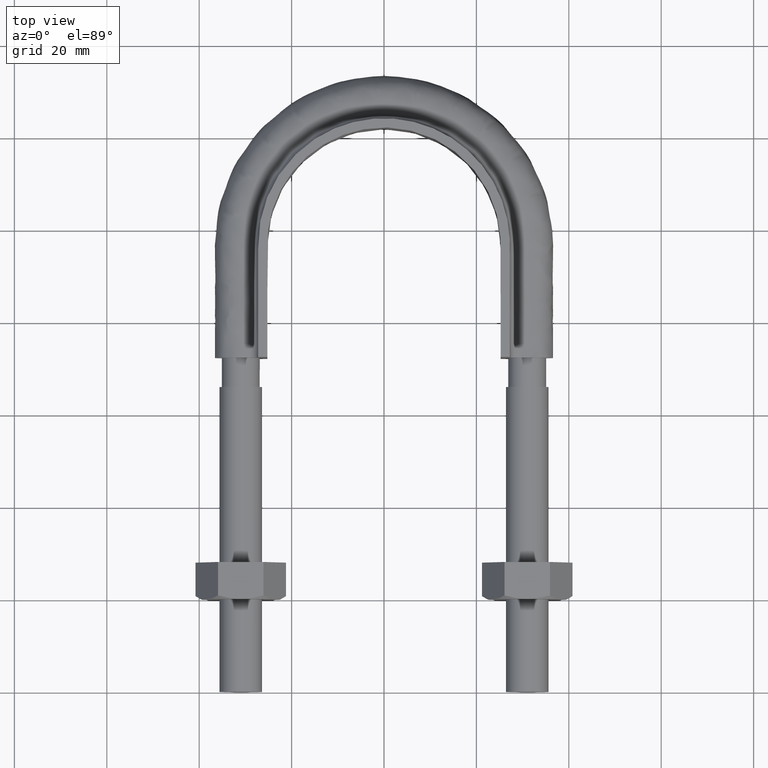
[diagram: clean part render]
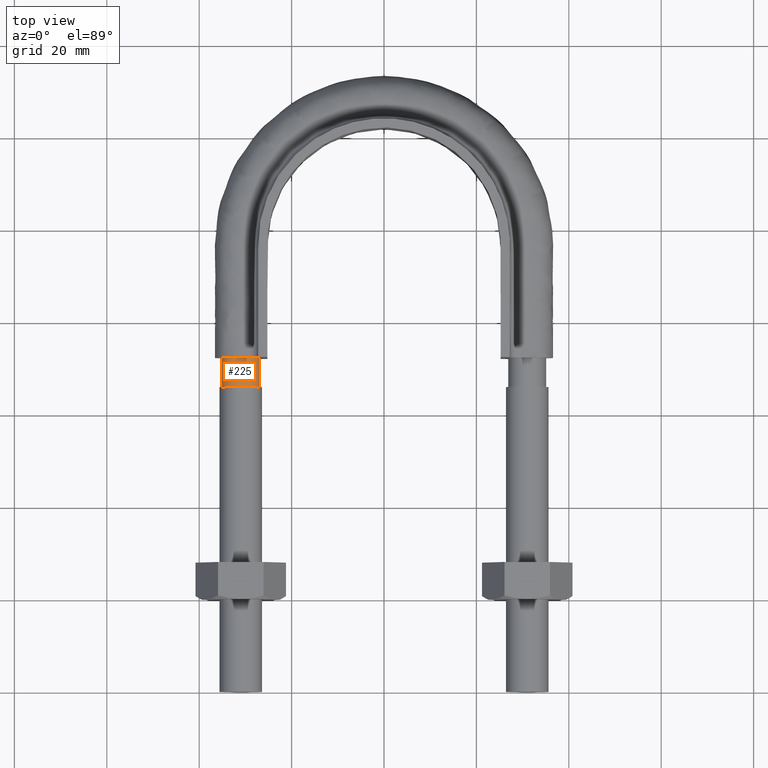
[diagram: same view with one face highlighted and labeled with its STEP entity id]
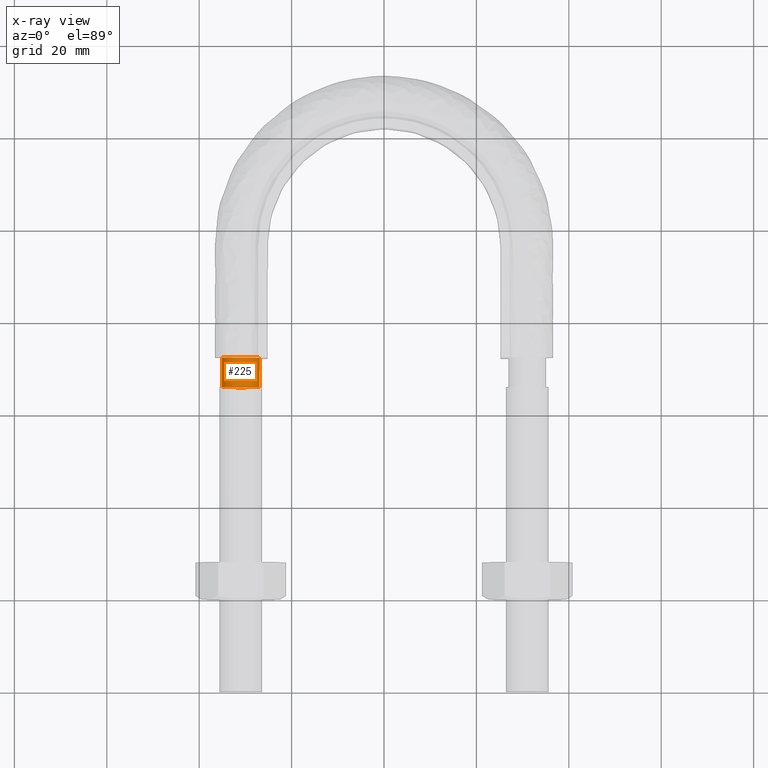
[diagram: x-ray of the same camera — body ghosted, the highlighted face saturated]
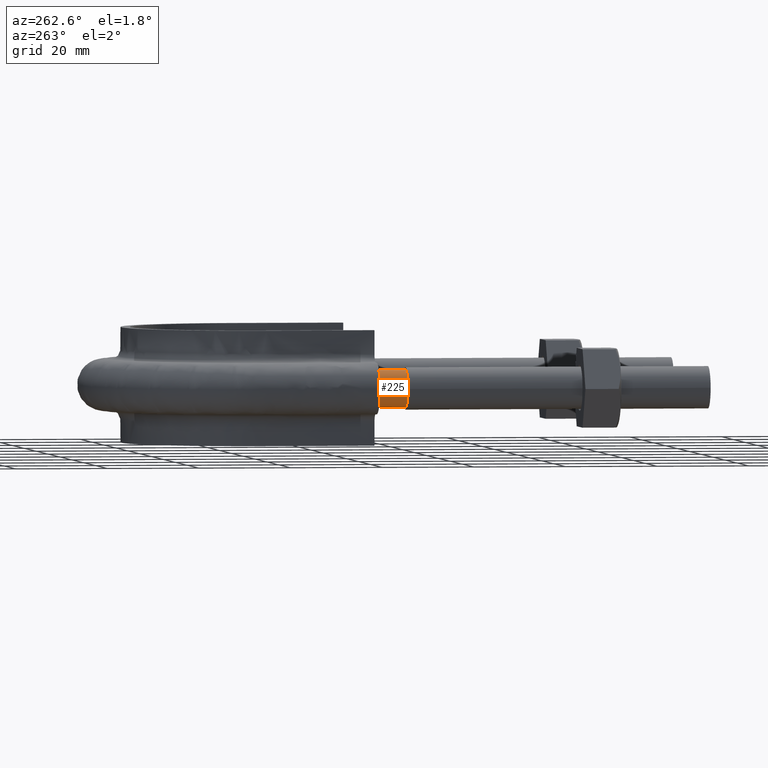
[diagram: same view with one face highlighted and labeled with its STEP entity id]
A machine part, top view. The second image highlights one B-rep face of the part: STEP entity #225.
The next image is the same camera in x-ray: the body ghosted, the highlighted face saturated — about 0% of this face is hidden behind the body in this view.
A second angle (auxiliary view) of the same face is appended — the face is thin or edge-on in the first view.
In plain terms, the highlighted cylindrical surface (bore or boss wall) has radius 4.1 mm, axis along (0, 1, 0).
Its self-contained STEP definition (entity closure, byte-faithful):
#225 = ADVANCED_FACE( '', ( #307, #308 ), #309, .T. );
#307 = FACE_OUTER_BOUND( '', #1001, .T. );
#308 = FACE_OUTER_BOUND( '', #1002, .T. );
#309 = CYLINDRICAL_SURFACE( '', #1003, 4.10000000000000 );
#1001 = EDGE_LOOP( '', ( #1359, #1360, #1361, #1362, #1363, #1364, #1365 ) );
#1002 = EDGE_LOOP( '', ( #1366 ) );
#1003 = AXIS2_PLACEMENT_3D( '', #1367, #1368, #1369 );
#1359 = ORIENTED_EDGE( '', *, *, #1851, .T. );
#1360 = ORIENTED_EDGE( '', *, *, #1852, .T. );
#1361 = ORIENTED_EDGE( '', *, *, #1853, .T. );
#1362 = ORIENTED_EDGE( '', *, *, #1854, .T. );
#1363 = ORIENTED_EDGE( '', *, *, #1855, .T. );
#1364 = ORIENTED_EDGE( '', *, *, #1856, .T. );
#1365 = ORIENTED_EDGE( '', *, *, #1857, .T. );
#1366 = ORIENTED_EDGE( '', *, *, #1858, .T. );
#1367 = CARTESIAN_POINT( '', ( -31.0000000000000, 72.3000000000000, 5.74952683119606E-015 ) );
#1368 = DIRECTION( '', ( 1.22460635382238E-016, 1.00000000000000, 1.83690953073357E-016 ) );
#1369 = DIRECTION( '', ( -1.00000000000000, 1.22460635382238E-016, 0.000000000000000 ) );
#1851 = EDGE_CURVE( '', #2009, #2010, #2011, .T. );
#1852 = EDGE_CURVE( '', #2010, #2012, #2013, .T. );
#1853 = EDGE_CURVE( '', #2012, #2014, #2015, .T. );
#1854 = EDGE_CURVE( '', #2014, #2016, #2017, .T. );
#1855 = EDGE_CURVE( '', #2016, #2018, #2019, .T. );
#1856 = EDGE_CURVE( '', #2018, #2020, #2021, .T. );
#1857 = EDGE_CURVE( '', #2020, #2009, #2022, .T. );
#1858 = EDGE_CURVE( '', #2023, #2023, #2024, .F. );
#2009 = VERTEX_POINT( '', #2438 );
#2010 = VERTEX_POINT( '', #2439 );
#2011 = CIRCLE( '', #2440, 4.10000000000000 );
#2012 = VERTEX_POINT( '', #2441 );
#2013 = CIRCLE( '', #2442, 4.10000000000000 );
#2014 = VERTEX_POINT( '', #2443 );
#2015 = CIRCLE( '', #2444, 4.10000000000000 );
#2016 = VERTEX_POINT( '', #2445 );
#2017 = CIRCLE( '', #2446, 4.10000000000000 );
#2018 = VERTEX_POINT( '', #2447 );
#2019 = CIRCLE( '', #2448, 4.10000000000000 );
#2020 = VERTEX_POINT( '', #2449 );
#2021 = CIRCLE( '', #2450, 4.10000000000000 );
#2022 = CIRCLE( '', #2451, 4.10000000000000 );
#2023 = VERTEX_POINT( '', #2452 );
#2024 = CIRCLE( '', #2453, 4.10000000000000 );
#2438 = CARTESIAN_POINT( '', ( -34.6939723583998, 72.3000000000000, -1.77892333038219 ) );
#2439 = CARTESIAN_POINT( '', ( -31.9123358292210, 72.3000000000000, -3.99720443994545 ) );
#2440 = AXIS2_PLACEMENT_3D( '', #2884, #2885, #2886 );
#2441 = CARTESIAN_POINT( '', ( -28.4436918123792, 72.3000000000000, -3.20550907811893 ) );
#2442 = AXIS2_PLACEMENT_3D( '', #2887, #2888, #2889 );
#2443 = CARTESIAN_POINT( '', ( -26.9000000000000, 72.3000000000000, 5.50935031674880E-014 ) );
#2444 = AXIS2_PLACEMENT_3D( '', #2890, #2891, #2892 );
#2445 = CARTESIAN_POINT( '', ( -28.4436918123814, 72.3000000000000, 3.20550907812068 ) );
#2446 = AXIS2_PLACEMENT_3D( '', #2893, #2894, #2895 );
#2447 = CARTESIAN_POINT( '', ( -31.9123358292215, 72.3000000000000, 3.99720443994535 ) );
#2448 = AXIS2_PLACEMENT_3D( '', #2896, #2897, #2898 );
#2449 = CARTESIAN_POINT( '', ( -34.6939723584000, 72.3000000000000, 1.77892333038178 ) );
#2450 = AXIS2_PLACEMENT_3D( '', #2899, #2900, #2901 );
#2451 = AXIS2_PLACEMENT_3D( '', #2902, #2903, #2904 );
#2452 = CARTESIAN_POINT( '', ( -31.0000000000000, 66.0000000000000, 4.10000000000000 ) );
#2453 = AXIS2_PLACEMENT_3D( '', #2905, #2906, #2907 );
#2884 = CARTESIAN_POINT( '', ( -31.0000000000000, 72.3000000000000, 5.74952683119606E-015 ) );
#2885 = DIRECTION( '', ( -1.22460635382238E-016, -1.00000000000000, -1.83690953073357E-016 ) );
#2886 = DIRECTION( '', ( -1.00000000000000, 1.22460635382238E-016, 0.000000000000000 ) );
#2887 = CARTESIAN_POINT( '', ( -31.0000000000000, 72.3000000000000, 5.74952683119606E-015 ) );
#2888 = DIRECTION( '', ( -1.22460635382238E-016, -1.00000000000000, -1.83690953073357E-016 ) );
#2889 = DIRECTION( '', ( -1.00000000000000, 1.22460635382238E-016, 0.000000000000000 ) );
#2890 = CARTESIAN_POINT( '', ( -31.0000000000000, 72.3000000000000, 5.74952683119606E-015 ) );
#2891 = DIRECTION( '', ( -1.22460635382238E-016, -1.00000000000000, -1.83690953073357E-016 ) );
#2892 = DIRECTION( '', ( -1.00000000000000, 1.22460635382238E-016, 0.000000000000000 ) );
#2893 = CARTESIAN_POINT( '', ( -31.0000000000000, 72.3000000000000, 5.74952683119606E-015 ) );
#2894 = DIRECTION( '', ( -1.22460635382238E-016, -1.00000000000000, -1.83690953073357E-016 ) );
#2895 = DIRECTION( '', ( -1.00000000000000, 1.22460635382238E-016, 0.000000000000000 ) );
#2896 = CARTESIAN_POINT( '', ( -31.0000000000000, 72.3000000000000, 5.74952683119606E-015 ) );
#2897 = DIRECTION( '', ( -1.22460635382238E-016, -1.00000000000000, -1.83690953073357E-016 ) );
#2898 = DIRECTION( '', ( -1.00000000000000, 1.22460635382238E-016, 0.000000000000000 ) );
#2899 = CARTESIAN_POINT( '', ( -31.0000000000000, 72.3000000000000, 5.74952683119606E-015 ) );
#2900 = DIRECTION( '', ( -1.22460635382238E-016, -1.00000000000000, -1.83690953073357E-016 ) );
#2901 = DIRECTION( '', ( -1.00000000000000, 1.22460635382238E-016, 0.000000000000000 ) );
#2902 = CARTESIAN_POINT( '', ( -31.0000000000000, 72.3000000000000, 5.74952683119606E-015 ) );
#2903 = DIRECTION( '', ( -1.22460635382238E-016, -1.00000000000000, -1.83690953073357E-016 ) );
#2904 = DIRECTION( '', ( -1.00000000000000, 1.22460635382238E-016, 0.000000000000000 ) );
#2905 = CARTESIAN_POINT( '', ( -31.0000000000000, 66.0000000000000, 4.59227382683392E-015 ) );
#2906 = DIRECTION( '', ( -1.22460635382238E-016, -1.00000000000000, -1.83690953073357E-016 ) );
#2907 = DIRECTION( '', ( -2.24949108273321E-032, -1.83690953073357E-016, 1.00000000000000 ) );